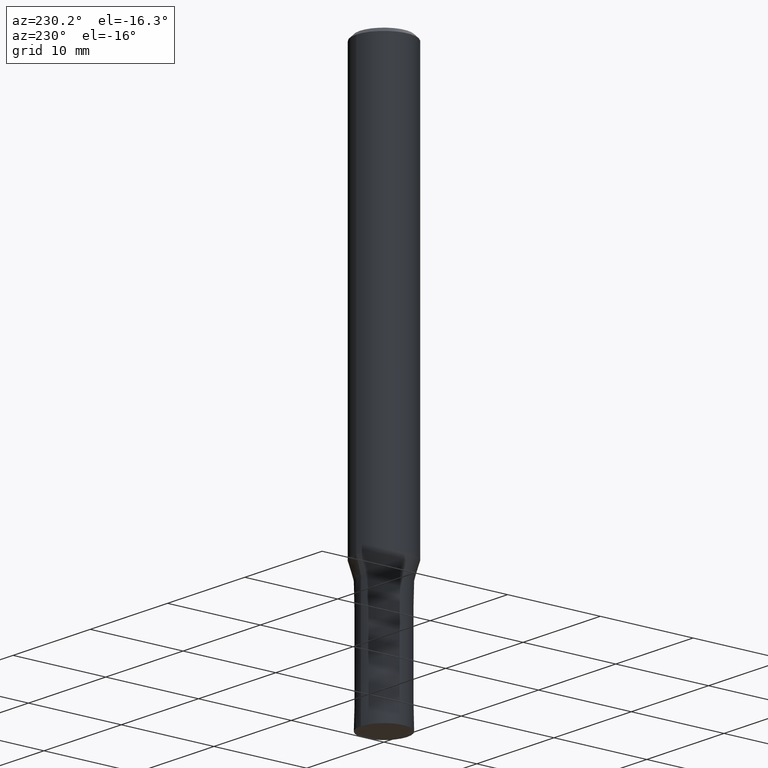
[diagram: clean part render]
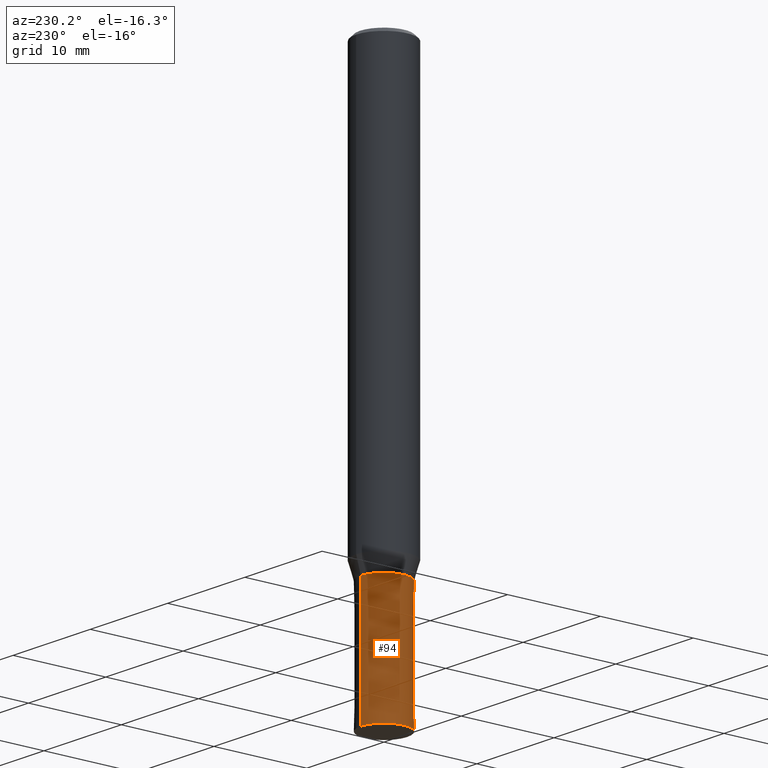
[diagram: same view with one face highlighted and labeled with its STEP entity id]
A machine part, auxiliary view. The second image highlights one B-rep face of the part: STEP entity #94.
In plain terms, the highlighted conical surface has half-angle 0 deg.
Its self-contained STEP definition (entity closure, byte-faithful):
#84=EDGE_CURVE('',#100,#160,#205,.T.);
#94=ADVANCED_FACE('',(#215),#216,.T.);
#100=VERTEX_POINT('',#222);
#124=EDGE_CURVE('',#160,#168,#248,.T.);
#146=EDGE_CURVE('',#170,#168,#274,.T.);
#160=VERTEX_POINT('',#291);
#168=VERTEX_POINT('',#299);
#170=VERTEX_POINT('',#301);
#174=EDGE_CURVE('',#170,#100,#305,.T.);
#205=CIRCLE('',#333,2.4999);
#215=FACE_OUTER_BOUND('',#346,.T.);
#216=CONICAL_SURFACE('',#347,2.49995,7.6923076921722E-006);
#222=CARTESIAN_POINT('',(3.06139342392056E-016,-2.4999,-47.0));
#248=LINE('',#390,#391);
#274=CIRCLE('',#418,2.5);
#291=CARTESIAN_POINT('',(0.0,2.4999,-47.0));
#299=CARTESIAN_POINT('',(0.0,2.5,-60.0));
#301=CARTESIAN_POINT('',(3.06151588455594E-016,-2.5,-60.0));
#305=LINE('',#458,#459);
#333=AXIS2_PLACEMENT_3D('',#476,#477,#478);
#346=EDGE_LOOP('',(#489,#490,#491,#492));
#347=AXIS2_PLACEMENT_3D('',#493,#494,#495);
#390=CARTESIAN_POINT('',(-3.06145465423825E-016,2.49995,-53.5));
#391=VECTOR('',#525,1.0);
#418=AXIS2_PLACEMENT_3D('',#562,#563,#564);
#458=CARTESIAN_POINT('',(3.06145465423825E-016,-2.49995,-53.5));
#459=VECTOR('',#598,1.0);
#476=CARTESIAN_POINT('',(0.0,0.0,-47.0));
#477=DIRECTION('',(0.0,0.0,-1.0));
#478=DIRECTION('',(0.0,1.0,0.0));
#489=ORIENTED_EDGE('',*,*,#124,.T.);
#490=ORIENTED_EDGE('',*,*,#146,.F.);
#491=ORIENTED_EDGE('',*,*,#174,.T.);
#492=ORIENTED_EDGE('',*,*,#84,.T.);
#493=CARTESIAN_POINT('',(0.0,0.0,-53.5));
#494=DIRECTION('',(0.0,-0.0,-1.0));
#495=DIRECTION('',(0.0,1.0,0.0));
#525=DIRECTION('',(-9.42004887529793E-022,7.69230769209634E-006,-0.999999999970414));
#562=CARTESIAN_POINT('',(0.0,0.0,-60.0));
#563=DIRECTION('',(0.0,0.0,-1.0));
#564=DIRECTION('',(0.0,1.0,0.0));
#598=DIRECTION('',(-9.42004887529793E-022,7.69230769209634E-006,0.999999999970414));